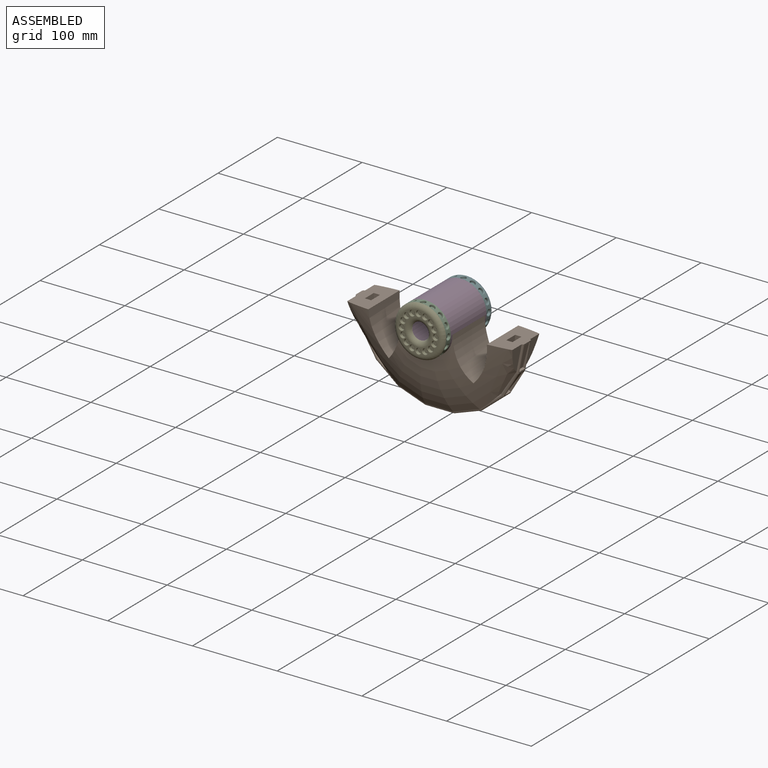
[diagram: assembled view]
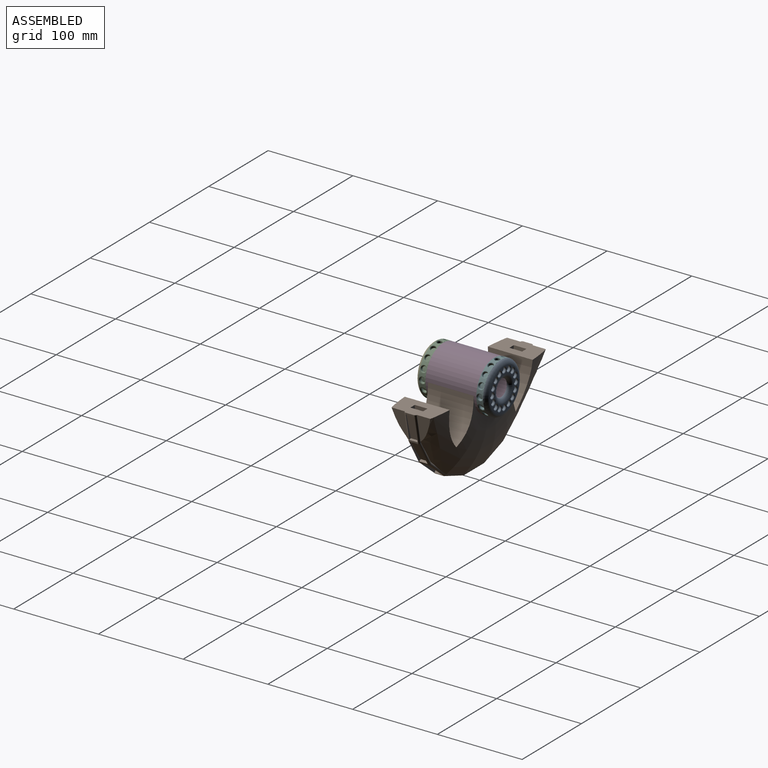
[diagram: assembled view, second angle]
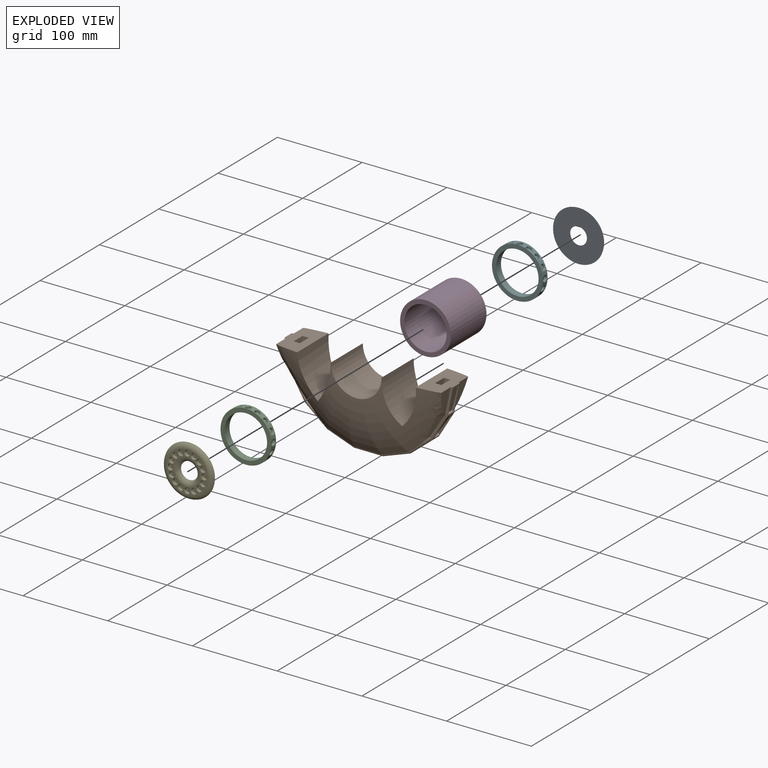
[diagram: exploded view]
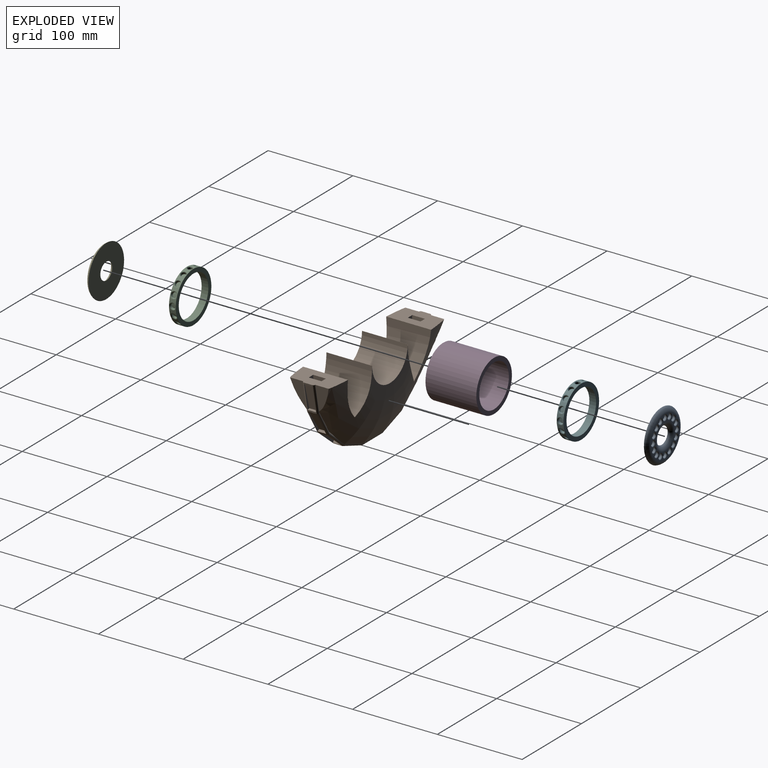
[diagram: exploded view, second angle]
ASSEMBLY  parts=6 mates=5
PART A: 52 faces, bbox 65.7x6x65.7 mm
  f0: plane 60x60mm, normal (0,-1,0), area 2513.3mm2, adj f34,f35
  f1: cylinder r=3mm len=6mm, axis (0,-1,0), area 41.5mm2, adj f18,f51
  f2: cylinder r=3mm len=6mm, axis (0,-1,0), area 41.5mm2, adj f19,f50
  f3: cylinder r=3mm len=6mm, axis (0,-1,0), area 41.5mm2, adj f20,f49
  f4: cylinder r=3mm len=6mm, axis (0,-1,0), area 41.5mm2, adj f21,f48
  f5: cylinder r=3mm len=6mm, axis (0,-1,0), area 41.5mm2, adj f22,f47
  f6: cylinder r=3mm len=6mm, axis (0,-1,0), area 41.5mm2, adj f23,f46
  f7: cylinder r=3mm len=6mm, axis (0,-1,0), area 41.5mm2, adj f24,f45
  f8: cylinder r=3mm len=6mm, axis (0,-1,0), area 41.5mm2, adj f25,f44
  f9: cylinder r=3mm len=6mm, axis (0,-1,0), area 41.5mm2, adj f26,f43
  f10: cylinder r=3mm len=6mm, axis (0,-1,0), area 41.5mm2, adj f27,f42
  f11: cylinder r=3mm len=6mm, axis (0,-1,0), area 41.5mm2, adj f28,f41
  f12: cylinder r=3mm len=6mm, axis (0,-1,0), area 41.5mm2, adj f29,f40
  f13: cylinder r=3mm len=6mm, axis (0,-1,0), area 41.5mm2, adj f30,f39
  f14: cylinder r=3mm len=6mm, axis (0,-1,0), area 41.5mm2, adj f31,f38
  f15: cylinder r=3mm len=6mm, axis (0,-1,0), area 41.5mm2, adj f32,f37
  f16: cylinder r=3mm len=6mm, axis (0,-1,0), area 41.5mm2, adj f33,f36
  f17: plane 48.69x48.69mm, normal (0,1,0), area 365.7mm2, adj f34,f35,f36,f37,f38,f39,f40,f41
  f18: plane 6x6mm, normal (0,1,0), area 28.3mm2, adj f1
  f19: plane 6x6mm, normal (0,1,0), area 28.3mm2, adj f2
  f20: plane 6x6mm, normal (0,1,0), area 28.3mm2, adj f3
  f21: plane 6x6mm, normal (0,1,0), area 28.3mm2, adj f4
  f22: plane 6x6mm, normal (0,1,0), area 28.3mm2, adj f5
  f23: plane 6x6mm, normal (0,1,0), area 28.3mm2, adj f6
  f24: plane 6x6mm, normal (0,1,0), area 28.3mm2, adj f7
  f25: plane 6x6mm, normal (0,1,0), area 28.3mm2, adj f8
  f26: plane 6x6mm, normal (0,1,0), area 28.3mm2, adj f9
  f27: plane 6x6mm, normal (0,1,0), area 28.3mm2, adj f10
  f28: plane 6x6mm, normal (0,1,0), area 28.3mm2, adj f11
  f29: plane 6x6mm, normal (0,1,0), area 28.3mm2, adj f12
  f30: plane 6x6mm, normal (0,1,0), area 28.3mm2, adj f13
  f31: plane 6x6mm, normal (0,1,0), area 28.3mm2, adj f14
  f32: plane 6x6mm, normal (0,1,0), area 28.3mm2, adj f15
  f33: plane 6x6mm, normal (0,1,0), area 28.3mm2, adj f16
  f34: torus R=24.34mm, axis (0,1,0), area 1280.5mm2, adj f0,f17
  f35: torus R=15.66mm, axis (0,-1,0), area 575.8mm2, adj f0,f17
  f36: torus R=3.8mm, axis (0,-1,0), area 26mm2, adj f16,f17
  f37: torus R=3.8mm, axis (0,-1,0), area 26mm2, adj f15,f17
  f38: torus R=3.8mm, axis (0,-1,0), area 26mm2, adj f14,f17
  f39: torus R=3.8mm, axis (0,-1,0), area 26mm2, adj f13,f17
  f40: torus R=3.8mm, axis (0,-1,0), area 26mm2, adj f12,f17
  f41: torus R=3.8mm, axis (0,-1,0), area 26mm2, adj f11,f17
  f42: torus R=3.8mm, axis (0,-1,0), area 26mm2, adj f10,f17
  f43: torus R=3.8mm, axis (0,-1,0), area 26mm2, adj f9,f17
  f44: torus R=3.8mm, axis (0,-1,0), area 26mm2, adj f8,f17
  f45: torus R=3.8mm, axis (0,-1,0), area 26mm2, adj f7,f17
  f46: torus R=3.8mm, axis (0,-1,0), area 26mm2, adj f6,f17
  f47: torus R=3.8mm, axis (0,-1,0), area 26mm2, adj f5,f17
  f48: torus R=3.8mm, axis (0,-1,0), area 26mm2, adj f4,f17
  f49: torus R=3.8mm, axis (0,-1,0), area 26mm2, adj f3,f17
  f50: torus R=3.8mm, axis (0,-1,0), area 26mm2, adj f2,f17
  f51: torus R=3.8mm, axis (0,-1,0), area 26mm2, adj f1,f17
PART B: 130 faces, bbox 54.2x231.5x115.3 mm
  f0: plane 53.11x29.6mm, normal (0,0,-1), area 1287.8mm2, adj f10,f86,f96,f105,f107,f110,f116,f117
  f1: plane 53.11x29.6mm, normal (0,0,-1), area 1287.8mm2, adj f44,f85,f88,f97,f106,f109,f112,f121
  f2: plane 10x2mm, normal (0,0,1), area 20mm2, adj f11,f17,f92,f101
  f3: plane 10x1.88mm, normal (0,-0.34,0.94), area 20mm2, adj f19,f25,f91,f100
  f4: plane 10x1.55mm, normal (0,-0.63,0.77), area 20mm2, adj f27,f33,f90,f99
  f5: plane 10x1.72mm, normal (0,-0.86,0.51), area 20mm2, adj f35,f41,f89,f98
  f6: plane 10x1.96mm, normal (0,-0.98,0.19), area 20mm2, adj f43,f48,f88,f97
  f7: plane 10x1.88mm, normal (0,0.34,0.94), area 20mm2, adj f50,f56,f93,f102
  f8: plane 10x1.55mm, normal (0,0.63,0.77), area 20mm2, adj f58,f64,f94,f103
  f9: plane 10x1.72mm, normal (0,0.86,0.51), area 20mm2, adj f66,f72,f95,f104
  f10: plane 10x1.96mm, normal (0,0.98,0.19), area 20mm2, adj f0,f79,f96,f105
  f11: plane 11.19x0.09mm, normal (0,1,0), area 1mm2, adj f2,f51,f92,f101
  f12: plane 11.19x0.09mm, normal (0,-1,0), area 1mm2, adj f13,f19,f92,f101
  f13: plane 10x2mm, normal (0,0,1), area 20mm2, adj f12,f15,f92,f101
  f14: plane 30x2.99mm, normal (-1,0,0), area 59.9mm2, adj f15,f17,f18,f101
  f15: plane 10x1mm, normal (0,1,0), area 10mm2, adj f13,f14,f16,f18
  f16: plane 30x2.99mm, normal (1,0,0), area 59.9mm2, adj f15,f17,f18,f92
  f17: plane 10x2.99mm, normal (0,-1,0), area 29.9mm2, adj f2,f14,f16,f18
  f18: plane 30x10mm, normal (0,0.07,1), area 300.7mm2, adj f14,f15,f16,f17
  f19: plane 11.19x0.08mm, normal (0,0.94,0.34), area 1mm2, adj f3,f12,f91,f100
  f20: plane 11.19x0.08mm, normal (0,-0.94,-0.34), area 1mm2, adj f21,f27,f91,f100
  f21: plane 10x1.88mm, normal (0,-0.34,0.94), area 20mm2, adj f20,f23,f91,f100
  f22: plane 29.25x11.05mm, normal (-1,0,0), area 59.9mm2, adj f23,f25,f26,f100
  f23: plane 10x0.94mm, normal (0,0.94,0.34), area 10mm2, adj f21,f22,f24,f26
  f24: plane 29.25x11.05mm, normal (1,0,0), area 59.9mm2, adj f23,f25,f26,f91
  f25: plane 10x2.82mm, normal (0,-0.94,-0.34), area 29.9mm2, adj f3,f22,f24,f26
  f26: plane 28.92x10mm, normal (0,-0.27,0.96), area 300.7mm2, adj f22,f23,f24,f25
  f27: plane 11.19x0.07mm, normal (0,0.77,0.63), area 1mm2, adj f4,f20,f90,f99
  f28: plane 11.19x0.07mm, normal (0,-0.77,-0.63), area 1mm2, adj f29,f35,f90,f99
  f29: plane 10x1.55mm, normal (0,-0.63,0.77), area 20mm2, adj f28,f31,f90,f99
  f30: plane 25.08x19.81mm, normal (-1,0,0), area 59.9mm2, adj f31,f33,f34,f99
  f31: plane 10x0.77mm, normal (0,0.77,0.63), area 10mm2, adj f29,f30,f32,f34
  f32: plane 25.08x19.81mm, normal (1,0,0), area 59.9mm2, adj f31,f33,f34,f90
  f33: plane 10x2.31mm, normal (0,-0.77,-0.63), area 29.9mm2, adj f4,f30,f32,f34
  f34: plane 24.45x17.5mm, normal (0,-0.58,0.81), area 300.7mm2, adj f30,f31,f32,f33
  f35: plane 11.19x0.08mm, normal (0,0.51,0.86), area 1mm2, adj f5,f28,f89,f98
  f36: plane 11.19x0.08mm, normal (0,-0.51,-0.86), area 1mm2, adj f37,f43,f89,f98
  f37: plane 10x1.72mm, normal (0,-0.86,0.51), area 20mm2, adj f36,f39,f89,f98
  f38: plane 26.26x17.97mm, normal (-1,0,0), area 59.9mm2, adj f39,f41,f42,f98
  f39: plane 10x0.86mm, normal (0,0.51,0.86), area 10mm2, adj f37,f38,f40,f42
  f40: plane 26.26x17.97mm, normal (1,0,0), area 59.9mm2, adj f39,f41,f42,f89
  f41: plane 10x2.57mm, normal (0,-0.51,-0.86), area 29.9mm2, adj f5,f38,f40,f42
  f42: plane 24.72x17.12mm, normal (0,-0.82,0.57), area 300.7mm2, adj f38,f39,f40,f41
  f43: plane 11.19x0.09mm, normal (0,0.19,0.98), area 1mm2, adj f6,f36,f88,f97
  f44: plane 10x1.96mm, normal (0,-0.98,0.19), area 20mm2, adj f1,f46,f88,f97
  f45: plane 29.62x8.76mm, normal (-1,0,0), area 59.9mm2, adj f46,f48,f49,f97
  f46: plane 10x0.98mm, normal (0,0.19,0.98), area 10mm2, adj f44,f45,f47,f49
  f47: plane 29.62x8.76mm, normal (1,0,0), area 59.9mm2, adj f46,f48,f49,f88
  f48: plane 10x2.94mm, normal (0,-0.19,-0.98), area 29.9mm2, adj f6,f45,f47,f49
  f49: plane 29.04x10mm, normal (0,-0.97,0.26), area 300.7mm2, adj f45,f46,f47,f48
  f50: plane 11.19x0.08mm, normal (0,0.94,-0.34), area 1mm2, adj f7,f59,f93,f102
  f51: plane 11.19x0.08mm, normal (0,-0.94,0.34), area 1mm2, adj f11,f52,f93,f102
  f52: plane 10x1.88mm, normal (0,0.34,0.94), area 20mm2, adj f51,f54,f93,f102
  f53: plane 28.58x12.93mm, normal (-1,0,0), area 59.9mm2, adj f54,f56,f57,f102
  f54: plane 10x0.94mm, normal (0,0.94,-0.34), area 10mm2, adj f52,f53,f55,f57
  f55: plane 28.58x12.93mm, normal (1,0,0), area 59.9mm2, adj f54,f56,f57,f93
  f56: plane 10x2.82mm, normal (0,-0.94,0.34), area 29.9mm2, adj f7,f53,f55,f57
  f57: plane 27.57x11.99mm, normal (0,0.4,0.92), area 300.7mm2, adj f53,f54,f55,f56
  f58: plane 11.19x0.07mm, normal (0,0.77,-0.63), area 1mm2, adj f8,f67,f94,f103
  f59: plane 11.19x0.07mm, normal (0,-0.77,0.63), area 1mm2, adj f50,f60,f94,f103
  f60: plane 10x1.55mm, normal (0,0.63,0.77), area 20mm2, adj f59,f62,f94,f103
  f61: plane 23.82x21.35mm, normal (-1,0,0), area 59.9mm2, adj f62,f64,f65,f103
  f62: plane 10x0.77mm, normal (0,0.77,-0.63), area 10mm2, adj f60,f61,f63,f65
  f63: plane 23.82x21.35mm, normal (1,0,0), area 59.9mm2, adj f62,f64,f65,f94
  f64: plane 10x2.31mm, normal (0,-0.77,0.63), area 29.9mm2, adj f8,f61,f63,f65
  f65: plane 21.92x20.58mm, normal (0,0.68,0.73), area 300.7mm2, adj f61,f62,f63,f64
  f66: plane 11.19x0.08mm, normal (0,0.51,-0.86), area 1mm2, adj f9,f74,f95,f104
  f67: plane 11.19x0.08mm, normal (0,-0.51,0.86), area 1mm2, adj f58,f68,f95,f104
  f68: plane 10x1.72mm, normal (0,0.86,0.51), area 20mm2, adj f67,f70,f95,f104
  f69: plane 27.28x16.26mm, normal (-1,0,0), area 59.9mm2, adj f70,f72,f73,f104
  f70: plane 10x0.86mm, normal (0,0.51,-0.86), area 10mm2, adj f68,f69,f71,f73
  f71: plane 27.28x16.26mm, normal (1,0,0), area 59.9mm2, adj f70,f72,f73,f95
  f72: plane 10x2.57mm, normal (0,-0.51,0.86), area 29.9mm2, adj f9,f69,f71,f73
  f73: plane 26.77x13.7mm, normal (0,0.89,0.46), area 300.7mm2, adj f69,f70,f71,f72
  f74: plane 11.19x0.09mm, normal (0,-0.19,0.98), area 1mm2, adj f66,f75,f96,f105
  f75: plane 10x1.96mm, normal (0,0.98,0.19), area 20mm2, adj f74,f77,f96,f105
  f76: plane 30.01x6.81mm, normal (-1,0,0), area 59.9mm2, adj f77,f79,f80,f105
  f77: plane 10x0.98mm, normal (0,0.19,-0.98), area 10mm2, adj f75,f76,f78,f80
  f78: plane 30.01x6.81mm, normal (1,0,0), area 59.9mm2, adj f77,f79,f80,f96
  f79: plane 10x2.94mm, normal (0,-0.19,0.98), area 29.9mm2, adj f10,f76,f78,f80
  f80: plane 29.82x10mm, normal (0,0.99,0.13), area 300.7mm2, adj f76,f77,f78,f79
  f81: cylinder r=70mm len=52.93mm, axis (1,0,0), area 2547.3mm2, adj f82,f86,f116,f117
  f82: cylinder r=70mm len=54mm, axis (1,0,0), area 2692.5mm2, adj f81,f87,f108,f111,f116,f117
  f83: cylinder r=70mm len=54mm, axis (1,0,0), area 2692.5mm2, adj f84,f87,f108,f111,f112,f121
  f84: cylinder r=70mm len=52.93mm, axis (1,0,0), area 2547.3mm2, adj f83,f85,f112,f121
  f85: plane 52.95x0.13mm, normal (0,1,0), area 6.9mm2, adj f1,f84,f112,f121
  f86: plane 52.95x0.13mm, normal (0,-1,0), area 6.9mm2, adj f0,f81,f116,f117
  f87: cylinder r=30mm len=60mm, axis (-1,0,0), area 5075.3mm2, adj f82,f83,f108,f111
  f88: cylinder r=2mm len=33.87mm, axis (0,0.19,0.98), area 106.4mm2, adj f1,f6,f43,f44,f47,f89,f109,f124
  f89: cylinder r=2mm len=31.23mm, axis (0,0.51,0.86), area 159.8mm2, adj f5,f35,f36,f37,f40,f88,f90,f124
  f90: cylinder r=2mm len=28.81mm, axis (0,0.77,0.63), area 131.8mm2, adj f4,f27,f28,f29,f32,f89,f91,f112
  f91: cylinder r=2mm len=32.68mm, axis (0,0.94,0.34), area 106mm2, adj f3,f19,f20,f21,f24,f90,f92,f113
  f92: cylinder r=2mm len=34mm, axis (0,1,0), area 106mm2, adj f2,f11,f12,f13,f16,f91,f93,f114
  f93: cylinder r=2mm len=32.68mm, axis (0,0.94,-0.34), area 106mm2, adj f7,f50,f51,f52,f55,f92,f94,f115
  f94: cylinder r=2mm len=28.81mm, axis (0,0.77,-0.63), area 131.8mm2, adj f8,f58,f59,f60,f63,f93,f95,f116
  f95: cylinder r=2mm len=31.23mm, axis (0,0.51,-0.86), area 159.8mm2, adj f9,f66,f67,f68,f71,f94,f96,f125
  f96: cylinder r=2mm len=33.87mm, axis (0,0.19,-0.98), area 106.4mm2, adj f0,f10,f74,f75,f78,f95,f110,f125
  f97: cylinder r=2mm len=33.87mm, axis (0,-0.19,-0.98), area 106.4mm2, adj f1,f6,f43,f44,f45,f98,f106,f123
  f98: cylinder r=2mm len=31.23mm, axis (0,-0.51,-0.86), area 159.8mm2, adj f5,f35,f36,f37,f38,f97,f99,f123
  f99: cylinder r=2mm len=28.81mm, axis (0,-0.77,-0.63), area 131.8mm2, adj f4,f27,f28,f29,f30,f98,f100,f121
  f100: cylinder r=2mm len=32.68mm, axis (0,-0.94,-0.34), area 106mm2, adj f3,f19,f20,f21,f22,f99,f101,f120
  f101: cylinder r=2mm len=34mm, axis (0,-1,0), area 106mm2, adj f2,f11,f12,f13,f14,f100,f102,f119
  f102: cylinder r=2mm len=32.68mm, axis (0,-0.94,0.34), area 106mm2, adj f7,f50,f51,f52,f53,f101,f103,f118
  f103: cylinder r=2mm len=28.81mm, axis (0,-0.77,0.63), area 131.8mm2, adj f8,f58,f59,f60,f61,f102,f104,f117
  f104: cylinder r=2mm len=31.23mm, axis (0,-0.51,0.86), area 159.8mm2, adj f9,f66,f67,f68,f69,f103,f105,f122
  f105: cylinder r=2mm len=33.87mm, axis (0,-0.19,0.98), area 106.4mm2, adj f0,f10,f74,f75,f76,f104,f107,f122
  f106: plane 30.82x15.81mm, normal (0,-0.98,0.19), area 313.5mm2, adj f1,f97,f123
  f107: plane 30.82x15.81mm, normal (0,0.98,0.19), area 313.5mm2, adj f0,f105,f122
  f108: plane 64.5x33.51mm, normal (1,0,0), area 366.7mm2, adj f82,f83,f87,f117,f118,f119,f120,f121
  f109: plane 30.82x15.81mm, normal (0,-0.98,0.19), area 313.5mm2, adj f1,f88,f124
  f110: plane 30.82x15.81mm, normal (0,0.98,0.19), area 313.5mm2, adj f0,f96,f125
  f111: plane 64.5x33.51mm, normal (-1,0,0), area 366.7mm2, adj f82,f83,f87,f112,f113,f114,f115,f116
  f112: cylinder r=100mm len=105.69mm, axis (0,0.77,0.63), area 2185.7mm2, adj f1,f83,f84,f85,f90,f111,f113,f124
  f113: cylinder r=100mm len=67.73mm, axis (0,0.94,0.34), area 1474.8mm2, adj f91,f111,f112,f114
  f114: cylinder r=100mm len=60mm, axis (0,1,0), area 1474.8mm2, adj f92,f111,f113,f115
  f115: cylinder r=100mm len=67.73mm, axis (0,0.94,-0.34), area 1474.8mm2, adj f93,f111,f114,f116
  f116: cylinder r=100mm len=105.69mm, axis (0,0.77,-0.63), area 2185.7mm2, adj f0,f81,f82,f86,f94,f111,f115,f125
  f117: cylinder r=100mm len=105.69mm, axis (0,-0.77,0.63), area 2185.7mm2, adj f0,f81,f82,f86,f103,f108,f118,f122
  f118: cylinder r=100mm len=67.73mm, axis (0,-0.94,0.34), area 1474.8mm2, adj f102,f108,f117,f119
  f119: cylinder r=100mm len=60mm, axis (0,-1,0), area 1474.8mm2, adj f101,f108,f118,f120
  f120: cylinder r=100mm len=67.73mm, axis (0,-0.94,-0.34), area 1474.8mm2, adj f100,f108,f119,f121
  f121: cylinder r=100mm len=105.69mm, axis (0,-0.77,-0.63), area 2185.7mm2, adj f1,f83,f84,f85,f99,f108,f120,f123
  f122: bspline ~80.22x52.04mm, area 940.5mm2, adj f0,f103,f104,f105,f107,f117
  f123: bspline ~80.22x52.04mm, area 940.5mm2, adj f1,f97,f98,f99,f106,f121
  f124: bspline ~80.22x52.04mm, area 940.5mm2, adj f1,f88,f89,f90,f109,f112
  f125: bspline ~80.22x52.04mm, area 940.5mm2, adj f0,f94,f95,f96,f110,f116
  f126: cylinder r=79.75mm len=159.51mm, axis (1,0,0), area 3758.3mm2, adj f0,f1,f127,f129
  f127: plane 174.32x87.16mm, normal (-1,0,0), area 1941.9mm2, adj f0,f1,f126,f128
  f128: cylinder r=87.16mm len=174.32mm, axis (1,0,0), area 4107.3mm2, adj f0,f1,f127,f129
  f129: plane 174.32x87.16mm, normal (1,0,0), area 1941.9mm2, adj f0,f1,f126,f128
PART C: 67 faces, bbox 60x8x60 mm
  f0: cylinder r=30mm len=11.48mm, axis (0,1,0), area 42.1mm2, adj f16,f17,f51,f66
  f1: cylinder r=30mm len=9.73mm, axis (0,1,0), area 42.1mm2, adj f16,f17,f52,f59
  f2: cylinder r=30mm len=9.73mm, axis (0,1,0), area 42.1mm2, adj f16,f17,f53,f62
  f3: cylinder r=30mm len=11.48mm, axis (0,1,0), area 42.1mm2, adj f16,f17,f54,f65
  f4: cylinder r=30mm len=9.73mm, axis (0,1,0), area 42.1mm2, adj f16,f17,f55,f59
  f5: cylinder r=30mm len=11.48mm, axis (0,1,0), area 42.1mm2, adj f16,f17,f56,f64
  f6: cylinder r=30mm len=11.48mm, axis (0,1,0), area 42.1mm2, adj f16,f17,f57,f63
  f7: cylinder r=30mm len=9.73mm, axis (0,1,0), area 42.1mm2, adj f16,f17,f58,f61
  f8: cylinder r=30mm len=11.48mm, axis (0,1,0), area 42.1mm2, adj f16,f17,f52,f65
  f9: cylinder r=30mm len=9.73mm, axis (0,1,0), area 42.1mm2, adj f16,f17,f56,f60
  f10: cylinder r=30mm len=11.48mm, axis (0,1,0), area 42.1mm2, adj f16,f17,f58,f64
  f11: cylinder r=30mm len=11.48mm, axis (0,1,0), area 42.1mm2, adj f16,f17,f53,f66
  f12: cylinder r=30mm len=11.48mm, axis (0,1,0), area 42.1mm2, adj f16,f17,f55,f63
  f13: cylinder r=30mm len=9.73mm, axis (0,1,0), area 42.1mm2, adj f16,f17,f54,f61
  f14: cylinder r=30mm len=9.73mm, axis (0,1,0), area 42.1mm2, adj f16,f17,f57,f62
  f15: cylinder r=30mm len=9.73mm, axis (0,1,0), area 42.1mm2, adj f16,f17,f51,f60
  f16: plane 60x60mm, normal (0,-1,0), area 863.9mm2, adj f0,f1,f2,f3,f4,f5,f6,f7
  f17: plane 60x60mm, normal (0,1,0), area 863.9mm2, adj f0,f1,f2,f3,f4,f5,f6,f7
  f18: cylinder r=3mm len=6mm, axis (0,0,1), area 36.7mm2, adj f49,f66
  f19: cylinder r=3mm len=6mm, axis (0,0,1), area 36.7mm2, adj f48,f65
  f20: cylinder r=3mm len=6mm, axis (1,0,0), area 36.7mm2, adj f47,f64
  f21: cylinder r=3mm len=6mm, axis (1,0,0), area 36.7mm2, adj f46,f63
  f22: cylinder r=3mm len=6mm, axis (-0.71,0,-0.71), area 36.7mm2, adj f45,f62
  f23: cylinder r=3mm len=6mm, axis (-0.71,0,-0.71), area 36.7mm2, adj f44,f61
  f24: cylinder r=3mm len=6mm, axis (0.71,0,-0.71), area 36.7mm2, adj f43,f60
  f25: cylinder r=3mm len=6mm, axis (0.71,0,-0.71), area 36.7mm2, adj f42,f59
  f26: cylinder r=3mm len=6.37mm, axis (0.92,0,0.38), area 36.7mm2, adj f41,f58
  f27: cylinder r=3mm len=6.37mm, axis (0.92,0,0.38), area 36.7mm2, adj f40,f57
  f28: cylinder r=3mm len=6.37mm, axis (0.92,0,-0.38), area 36.7mm2, adj f39,f56
  f29: cylinder r=3mm len=6.37mm, axis (0.92,0,-0.38), area 36.7mm2, adj f38,f55
  f30: cylinder r=3mm len=6.37mm, axis (0.38,0,0.92), area 36.7mm2, adj f37,f54
  f31: cylinder r=3mm len=6.37mm, axis (0.38,0,0.92), area 36.7mm2, adj f36,f53
  f32: cylinder r=3mm len=6.37mm, axis (-0.38,0,0.92), area 36.7mm2, adj f35,f52
  f33: cylinder r=3mm len=6.37mm, axis (-0.38,0,0.92), area 36.7mm2, adj f34,f51
  f34: cylinder r=27mm len=6mm, axis (0,1,0), area 28.3mm2, adj f33
  f35: cylinder r=27mm len=6mm, axis (0,1,0), area 28.3mm2, adj f32
  f36: cylinder r=27mm len=6mm, axis (0,1,0), area 28.3mm2, adj f31
  f37: cylinder r=27mm len=6mm, axis (0,1,0), area 28.3mm2, adj f30
  f38: cylinder r=27mm len=6mm, axis (0,1,0), area 28.3mm2, adj f29
  f39: cylinder r=27mm len=6mm, axis (0,1,0), area 28.3mm2, adj f28
  f40: cylinder r=27mm len=6mm, axis (0,1,0), area 28.3mm2, adj f27
  f41: cylinder r=27mm len=6mm, axis (0,1,0), area 28.3mm2, adj f26
  f42: cylinder r=27mm len=6mm, axis (0,1,0), area 28.3mm2, adj f25
  f43: cylinder r=27mm len=6mm, axis (0,1,0), area 28.3mm2, adj f24
  f44: cylinder r=27mm len=6mm, axis (0,1,0), area 28.3mm2, adj f23
  f45: cylinder r=27mm len=6mm, axis (0,1,0), area 28.3mm2, adj f22
  f46: cylinder r=27mm len=6mm, axis (0,1,0), area 28.3mm2, adj f21
  f47: cylinder r=27mm len=6mm, axis (0,1,0), area 28.3mm2, adj f20
  f48: cylinder r=27mm len=6mm, axis (0,1,0), area 28.3mm2, adj f19
  f49: cylinder r=27mm len=6mm, axis (0,1,0), area 28.3mm2, adj f18
  f50: cylinder r=25mm len=50mm, axis (0,1,0), area 1256.6mm2, adj f16,f17
  f51: bspline ~8.01x7.65mm, area 35mm2, adj f0,f15,f33
  f52: bspline ~8.01x7.65mm, area 35mm2, adj f1,f8,f32
  f53: bspline ~8.01x7.66mm, area 35mm2, adj f2,f11,f31
  f54: bspline ~8.01x7.66mm, area 35mm2, adj f3,f13,f30
  f55: bspline ~8.01x7.66mm, area 35mm2, adj f4,f12,f29
  f56: bspline ~8.01x7.66mm, area 35mm2, adj f5,f9,f28
  f57: bspline ~8.01x7.66mm, area 35mm2, adj f6,f14,f27
  f58: bspline ~8.01x7.66mm, area 35mm2, adj f7,f10,f26
  f59: bspline ~8.01x5.85mm, area 35mm2, adj f1,f4,f25
  f60: bspline ~8.01x5.85mm, area 35mm2, adj f9,f15,f24
  f61: bspline ~8.01x5.86mm, area 35mm2, adj f7,f13,f23
  f62: bspline ~8.01x5.86mm, area 35mm2, adj f2,f14,f22
  f63: bspline ~8.29x8.01mm, area 35mm2, adj f6,f12,f21
  f64: bspline ~8.29x8.01mm, area 35mm2, adj f5,f10,f20
  f65: bspline ~8.28x8.01mm, area 35mm2, adj f3,f8,f19
  f66: bspline ~8.29x8.01mm, area 35mm2, adj f0,f11,f18
PART D: 4 faces, bbox 60x60x60 mm
  f0: cylinder r=25mm len=60mm, axis (0,1,0), area 9424.8mm2, adj f2,f3
  f1: cylinder r=30mm len=60mm, axis (0,1,0), area 11309.7mm2, adj f2,f3
  f2: plane 60x60mm, normal (0,-1,0), area 863.9mm2, adj f0,f1
  f3: plane 60x60mm, normal (0,1,0), area 863.9mm2, adj f0,f1
PART E: same geometry as A
PART F: same geometry as C
PLACE A t=(-170.42,-31.29,-126.32)mm
PLACE B rot(axis=(0.71,-0.71,0),180deg) t=(-210.18,-20.09,-202.77)mm
PLACE C rot(axis=(0,0,-1),180deg) t=(-173.45,-54.09,-128.75)mm
PLACE D rot(axis=(0,-1,0),180deg) t=(-169.38,9.91,-130.83)mm
PLACE E rot(axis=(1,0,0),180deg) t=(-170.42,-8.89,-57.74)mm
PLACE F rot(axis=(0,-1,0),180deg) t=(-173.45,13.91,-55.31)mm
MATE revolute E.f34 <-> C.f0  axis (0,1,0) through (-209.98,-58.09,-92.03)mm
MATE revolute B.f87 <-> D.f0  axis (0,1,0) through (-209.98,-20.09,-92.03)mm
MATE fastened F.f0 <-> D.f0  axis (0,-1,0) through (-209.98,9.91,-92.03)mm
MATE fastened C.f0 <-> D.f0  axis (0,-1,0) through (-209.98,-50.09,-92.03)mm
MATE revolute A.f34 <-> F.f0  axis (0,-1,0) through (-209.98,17.91,-92.03)mm
